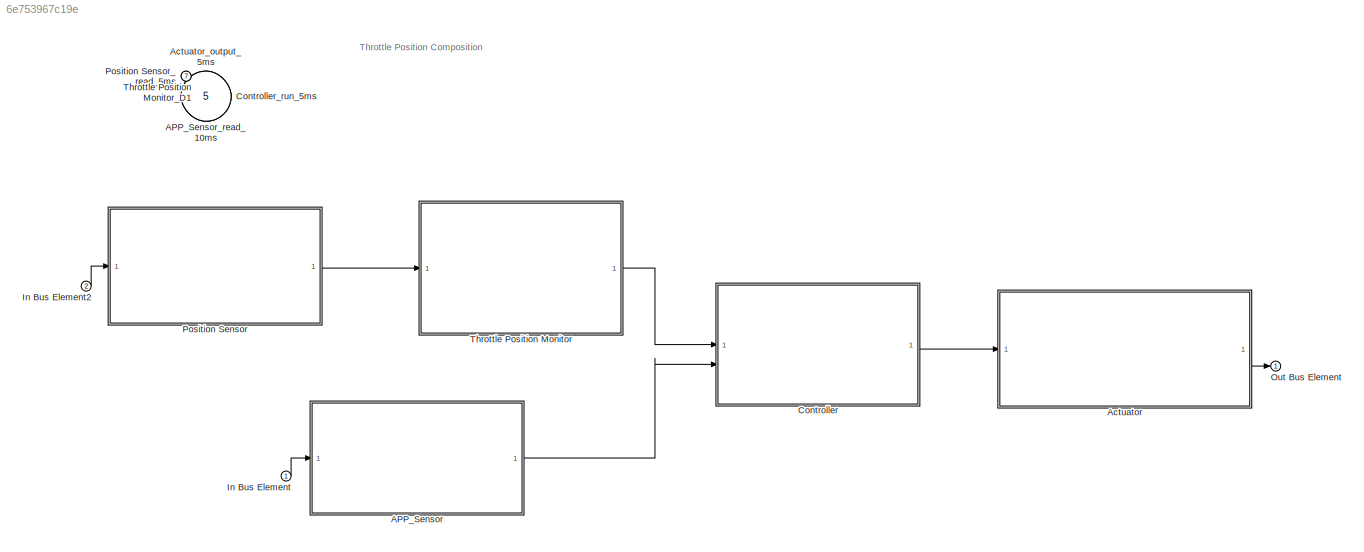
MODEL slx_6e753967c19e
KIND model
CONFIG AbsTol = auto
CONFIG EnableMultiTasking = off
CONFIG FixedStep = Ts
CONFIG MaxStep = auto
CONFIG MinStep = auto
CONFIG PostLoadFcn = HBridgeCmd_LkupTbl = Simulink.LookupTable;\nHBridgeCmd_LkupTbl.Table.DataType = 'int16';\nHBridgeCmd_LkupTbl.Table.Min = [];\nHBridgeCmd_LkupTbl.Table.Max = [];\nHBridgeCmd_LkupTbl.Table.Unit = '';\nHBridgeCmd_LkupTbl.Table.FieldName = 'Table';\nHBridgeCmd_LkupTbl.Table.Description = '';\nHBridgeCmd_LkupTbl.Table.Value = int16( ...\n  [-2048 -1843 -1638 -1434 -1229 -1024 -819 -614 -410 -205 0 205 410 614 ...<+7758ch>
CONFIG RelTol = 1e-3
CONFIG SampleTimeConstraint = Unconstrained
CONFIG SolverName = FixedStepDiscrete
CONFIG StartTime = 0.0
CONFIG StopTime = 10.0
BLOCK [ModelReference] APP_Sensor
  ModelNameDialog = APPValuewithLookUpTable
  ModelReferenceVersion = 5.2
  PortSchema = {"entries":[{"content":{"headerSize":38,"margin":15,"minimumSpacing":25,"sides":[{"content":{"connectorIds":["In1"]},"type":"ConnectorPlacement.EquallySpacedRectSide","uuid":"c29aa152-21e6-4ee4-993c-b72c52d53eaf"},{"content":{"connectorIds":["Out1"],"side":"RIGHT"},"type":"ConnectorPlacement.EquallySpacedRectSide","uuid":"9c4e8262-d4f5-4a71-85d6-4174f9813a5f"},{"content":{"connectorIds":[],"side":...<+437ch>  <repeated x3 — deduplicated; at blocks: APP_Sensor, Actuator, Position Sensor>
  ScheduleRates = on
BLOCK [Inport] APP_Sensor_read_10ms
  OutputFunctionCall = on
  Port = 3
BLOCK [ModelReference] Actuator
  ModelNameDialog = Actuator
  ModelReferenceVersion = 5.2
  ScheduleRates = on
BLOCK [Inport] Actuator_output_5ms
  OutputFunctionCall = on
  Port = 4
BLOCK [ModelReference] Controller
  ModelNameDialog = Controller
  ModelReferenceVersion = 5.4
  PortSchema = {"entries":[{"content":{"headerSize":38,"margin":15,"minimumSpacing":25,"sides":[{"content":{"connectorIds":["In1","In2"]},"type":"ConnectorPlacement.EquallySpacedRectSide","uuid":"c29aa152-21e6-4ee4-993c-b72c52d53eaf"},{"content":{"connectorIds":["Out1"],"side":"RIGHT"},"type":"ConnectorPlacement.EquallySpacedRectSide","uuid":"9c4e8262-d4f5-4a71-85d6-4174f9813a5f"},{"content":{"connectorIds":[],"...<+443ch>
  ScheduleRates = on
BLOCK [Inport] Controller_run_5ms
  OutputFunctionCall = on
  Port = 5
BLOCK [Inport] In Bus Element
BLOCK [Inport] In Bus Element2
  Port = 2
BLOCK [Outport] Out Bus Element
BLOCK [ModelReference] Position Sensor
  ModelNameDialog = PositionSensorwithLookUpTable
  ModelReferenceVersion = 5.3
  ScheduleRates = on
  UsingDefaultArgumentValue = 0
BLOCK [Inport] Position Sensor_read_5ms
  OutputFunctionCall = on
  Port = 6
BLOCK [ModelReference] Throttle Position Monitor
  CachedPortDiscreteRates = [0.005]
  ModelEventPortInfo = P:D1[0.005][0][0]
  ModelNameDialog = PositionMonitor
  ModelReferenceVersion = 5.2
  PortSchema = {"entries":[{"content":{"headerSize":38,"margin":15,"minimumSpacing":25,"sides":[{"content":{"connectorIds":["In1"]},"type":"ConnectorPlacement.EquallySpacedRectSide","uuid":"c29aa152-21e6-4ee4-993c-b72c52d53eaf"},{"content":{"connectorIds":["Out1"],"side":"RIGHT"},"type":"ConnectorPlacement.EquallySpacedRectSide","uuid":"9c4e8262-d4f5-4a71-85d6-4174f9813a5f"},{"content":{"side":"TOP"},"type":"Con...<+419ch>
  ScheduleRates = on
BLOCK [Inport] Throttle Position Monitor_D1
  OutputFunctionCall = on
  Port = 7
ANNOTATION (root): Throttle Position Composition
LINE APP_Sensor:1 -> Controller:2
LINE Actuator:1 -> Out Bus Element:1
LINE Controller:1 -> Actuator:1
LINE In Bus Element2:1 -> Position Sensor:1
LINE In Bus Element:1 -> APP_Sensor:1
LINE Position Sensor:1 -> Throttle Position Monitor:1
LINE Throttle Position Monitor:1 -> Controller:1
